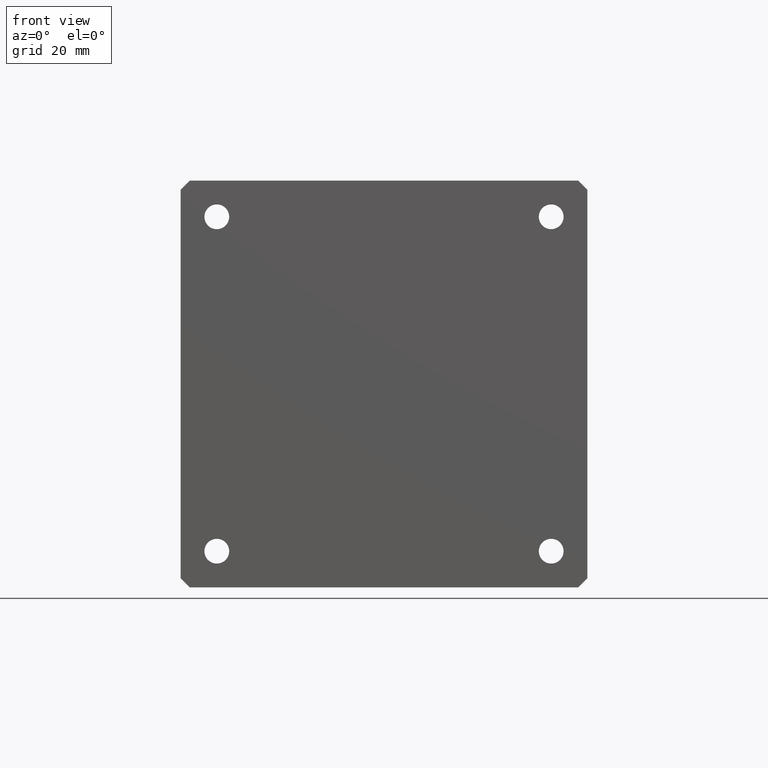
[diagram: clean part render]
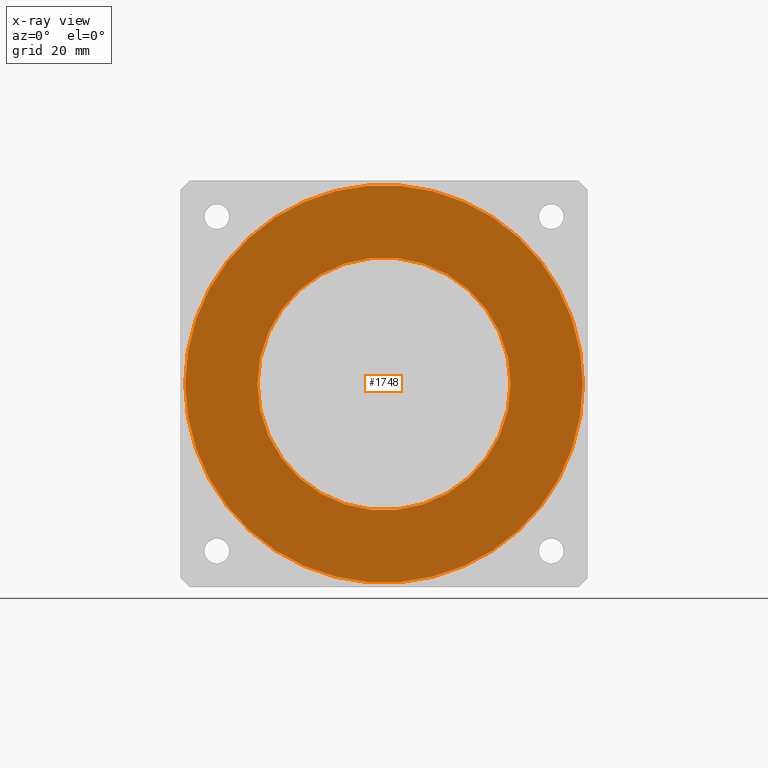
[diagram: x-ray — body ghosted, one internal face saturated and labeled with its STEP entity id]
A machine part, front view, then the same camera in x-ray: the body is ghosted and one INTERNAL B-rep face — a face not visible from any outside direction — is saturated and labeled: STEP entity #1748.
In plain terms, the highlighted planar face has unit normal (0, 1, 0).
Its self-contained STEP definition (entity closure, byte-faithful):
#937=CARTESIAN_POINT('',(0.E0,-8.5E1,0.E0));
#938=DIRECTION('',(0.E0,-1.E0,0.E0));
#939=DIRECTION('',(1.E0,0.E0,0.E0));
#940=AXIS2_PLACEMENT_3D('',#937,#938,#939);
#945=CARTESIAN_POINT('',(0.E0,-8.5E1,0.E0));
#946=DIRECTION('',(0.E0,-1.E0,0.E0));
#947=DIRECTION('',(-1.E0,0.E0,0.E0));
#948=AXIS2_PLACEMENT_3D('',#945,#946,#947);
#953=CARTESIAN_POINT('',(0.E0,-8.5E1,0.E0));
#954=DIRECTION('',(0.E0,-1.E0,0.E0));
#955=DIRECTION('',(1.E0,0.E0,0.E0));
#956=AXIS2_PLACEMENT_3D('',#953,#954,#955);
#961=CARTESIAN_POINT('',(0.E0,-8.5E1,0.E0));
#962=DIRECTION('',(0.E0,-1.E0,0.E0));
#963=DIRECTION('',(-1.E0,0.E0,0.E0));
#964=AXIS2_PLACEMENT_3D('',#961,#962,#963);
#1223=CARTESIAN_POINT('',(4.4E1,-8.5E1,0.E0));
#1224=CARTESIAN_POINT('',(-4.4E1,-8.5E1,1.077689183250E-14));
#1225=VERTEX_POINT('',#1223);
#1226=VERTEX_POINT('',#1224);
#1291=CARTESIAN_POINT('',(2.8E1,-8.5E1,0.E0));
#1292=CARTESIAN_POINT('',(-2.8E1,-8.5E1,0.E0));
#1293=VERTEX_POINT('',#1291);
#1294=VERTEX_POINT('',#1292);
#1735=CARTESIAN_POINT('',(0.E0,-8.5E1,0.E0));
#1736=DIRECTION('',(0.E0,-1.E0,0.E0));
#1737=DIRECTION('',(1.E0,0.E0,0.E0));
#1738=AXIS2_PLACEMENT_3D('',#1735,#1736,#1737);
#1739=PLANE('',#1738);
#1740=ORIENTED_EDGE('',*,*,#1400,.F.);
#1741=ORIENTED_EDGE('',*,*,#1462,.F.);
#1742=EDGE_LOOP('',(#1740,#1741));
#1743=FACE_OUTER_BOUND('',#1742,.F.);
#1744=ORIENTED_EDGE('',*,*,#1571,.T.);
#1745=ORIENTED_EDGE('',*,*,#1593,.T.);
#1746=EDGE_LOOP('',(#1744,#1745));
#1747=FACE_BOUND('',#1746,.F.);
#941=CIRCLE('',#940,4.4E1);
#949=CIRCLE('',#948,4.4E1);
#957=CIRCLE('',#956,2.8E1);
#965=CIRCLE('',#964,2.8E1);
#1400=EDGE_CURVE('',#1225,#1226,#941,.T.);
#1462=EDGE_CURVE('',#1226,#1225,#949,.T.);
#1571=EDGE_CURVE('',#1293,#1294,#957,.T.);
#1593=EDGE_CURVE('',#1294,#1293,#965,.T.);
#1748=ADVANCED_FACE('',(#1743,#1747),#1739,.T.);